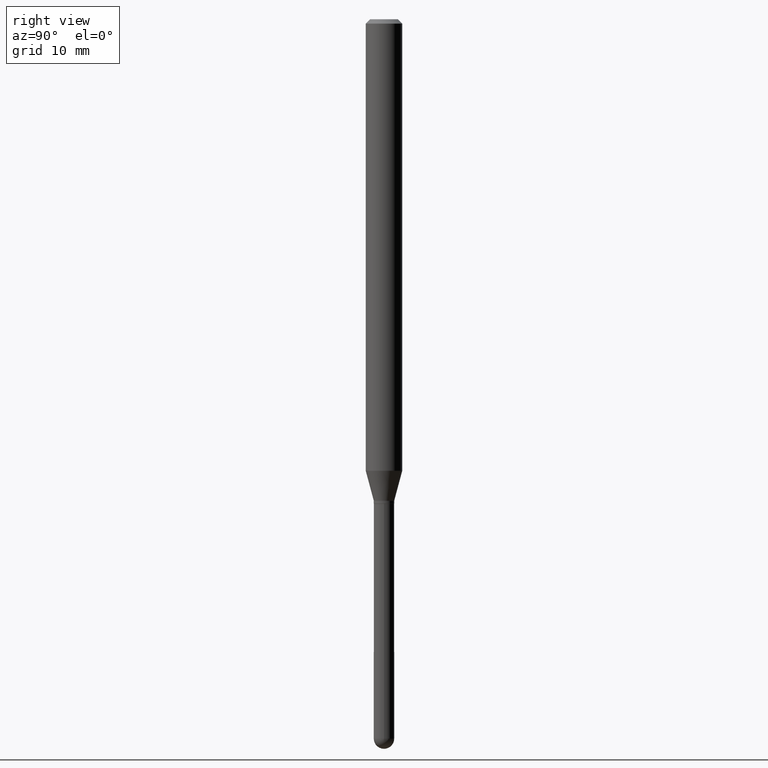
[diagram: clean part render]
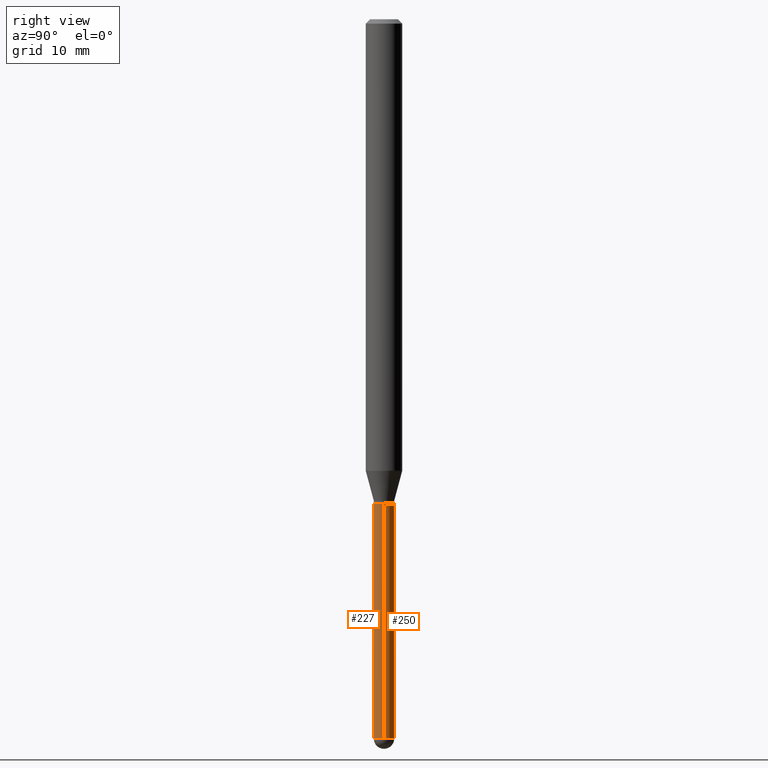
[diagram: same view with one multi-face feature highlighted, each face labeled with its STEP entity id]
A machine part, right view. The highlighted faces form ONE feature: a constant-radius fillet chain: 2 tangent blend faces with common blend radius 0.889 mm. The faces share edges in the B-rep.
Their STEP definitions:
[1] entity #250 (Cylinder):
#1 = VECTOR ( 'NONE', #497, 39.37007874015748143 ) ;
#9 = AXIS2_PLACEMENT_3D ( 'NONE', #379, #141, #174 ) ;
#11 = VERTEX_POINT ( 'NONE', #439 ) ;
#21 = LINE ( 'NONE', #366, #102 ) ;
#23 = DIRECTION ( 'NONE',  ( 1.000000000000000000, -6.982962677686276966E-15, 0.000000000000000000 ) ) ;
#35 = AXIS2_PLACEMENT_3D ( 'NONE', #312, #208, #356 ) ;
#39 = VERTEX_POINT ( 'NONE', #499 ) ;
#45 = VERTEX_POINT ( 'NONE', #488 ) ;
#95 = DIRECTION ( 'NONE',  ( -2.445468806185136597E-29, 3.491481338843145583E-15, 1.000000000000000000 ) ) ;
#97 = AXIS2_PLACEMENT_3D ( 'NONE', #464, #95, #293 ) ;
#98 = DIRECTION ( 'NONE',  ( -2.445468806185136877E-29, 3.491481338843145188E-15, 1.000000000000000000 ) ) ;
#102 = VECTOR ( 'NONE', #98, 39.37007874015748143 ) ;
#129 = DIRECTION ( 'NONE',  ( -2.445468806185136597E-29, 3.491481338843145583E-15, 1.000000000000000000 ) ) ;
#132 = CARTESIAN_POINT ( 'NONE',  ( 0.03500000000000000333, -2.444036937190193250E-16, 1.706661871528577808E-30 ) ) ;
#141 = DIRECTION ( 'NONE',  ( -2.445468806185136597E-29, 3.491481338843145583E-15, 1.000000000000000000 ) ) ;
#174 = DIRECTION ( 'NONE',  ( 1.000000000000000000, -6.982962677686248567E-15, 0.000000000000000000 ) ) ;
#196 = EDGE_CURVE ( 'NONE', #45, #507, #199, .T. ) ;
#199 = CIRCLE ( 'NONE', #35, 0.03500000000000000333 ) ;
#207 = CIRCLE ( 'NONE', #442, 0.03500000000000000333 ) ;
#208 = DIRECTION ( 'NONE',  ( -2.445468806185136597E-29, 3.491481338843145583E-15, 1.000000000000000000 ) ) ;
#226 = VERTEX_POINT ( 'NONE', #503 ) ;
#233 = EDGE_CURVE ( 'NONE', #39, #45, #337, .T. ) ;
#239 = ORIENTED_EDGE ( 'NONE', *, *, #196, .T. ) ;
#250 = ADVANCED_FACE ( 'NONE', ( #330 ), #506, .T. ) ;
#260 = EDGE_LOOP ( 'NONE', ( #239, #511, #305, #411, #421 ) ) ;
#293 = DIRECTION ( 'NONE',  ( 1.000000000000000000, -6.982962677686265922E-15, 4.876176775795936353E-29 ) ) ;
#305 = ORIENTED_EDGE ( 'NONE', *, *, #353, .F. ) ;
#312 = CARTESIAN_POINT ( 'NONE',  ( 6.028080607246362204E-29, -8.606501500248354960E-15, -2.464999999999999858 ) ) ;
#314 = CARTESIAN_POINT ( 'NONE',  ( -0.03500000000000000333, -6.952490303847953292E-15, -2.464999999999999858 ) ) ;
#323 = LINE ( 'NONE', #132, #1 ) ;
#330 = FACE_OUTER_BOUND ( 'NONE', #260, .T. ) ;
#337 = CIRCLE ( 'NONE', #9, 0.03500000000000000333 ) ;
#347 = EDGE_CURVE ( 'NONE', #507, #11, #21, .T. ) ;
#353 = EDGE_CURVE ( 'NONE', #226, #11, #207, .T. ) ;
#356 = DIRECTION ( 'NONE',  ( 1.000000000000000000, -6.982962677686248567E-15, 0.000000000000000000 ) ) ;
#362 = EDGE_CURVE ( 'NONE', #39, #226, #323, .T. ) ;
#366 = CARTESIAN_POINT ( 'NONE',  ( -0.03500000000000000333, 2.486899575160350887E-16, -1.721627281589217108E-30 ) ) ;
#379 = CARTESIAN_POINT ( 'NONE',  ( 6.028080607246362204E-29, -8.606501500248354960E-15, -2.464999999999999858 ) ) ;
#410 = CARTESIAN_POINT ( 'NONE',  ( 4.059478218267327378E-29, -5.795859022479622985E-15, -1.660000000000000364 ) ) ;
#411 = ORIENTED_EDGE ( 'NONE', *, *, #362, .F. ) ;
#421 = ORIENTED_EDGE ( 'NONE', *, *, #233, .T. ) ;
#439 = CARTESIAN_POINT ( 'NONE',  ( -0.03500000000000000333, -6.952490303847953292E-15, -1.660000000000000364 ) ) ;
#442 = AXIS2_PLACEMENT_3D ( 'NONE', #410, #129, #23 ) ;
#464 = CARTESIAN_POINT ( 'NONE',  ( 0.000000000000000000, 0.000000000000000000, 0.000000000000000000 ) ) ;
#488 = CARTESIAN_POINT ( 'NONE',  ( 2.444036937190786868E-16, 0.03499999999999126726, -2.464999999999999858 ) ) ;
#497 = DIRECTION ( 'NONE',  ( -2.445468806185136877E-29, 3.491481338843145188E-15, 1.000000000000000000 ) ) ;
#499 = CARTESIAN_POINT ( 'NONE',  ( 0.03500000000000000333, -7.445583955083008544E-15, -2.464999999999999858 ) ) ;
#503 = CARTESIAN_POINT ( 'NONE',  ( 0.03500000000000000333, -6.040262716198642951E-15, -1.660000000000000364 ) ) ;
#506 = CYLINDRICAL_SURFACE ( 'NONE', #97, 0.03500000000000000333 ) ;
#507 = VERTEX_POINT ( 'NONE', #314 ) ;
#511 = ORIENTED_EDGE ( 'NONE', *, *, #347, .T. ) ;
[2] entity #227 (Cylinder):
#1 = VECTOR ( 'NONE', #497, 39.37007874015748143 ) ;
#11 = VERTEX_POINT ( 'NONE', #439 ) ;
#21 = LINE ( 'NONE', #366, #102 ) ;
#31 = CARTESIAN_POINT ( 'NONE',  ( 4.059478218267327378E-29, -5.795859022479622985E-15, -1.660000000000000364 ) ) ;
#33 = DIRECTION ( 'NONE',  ( 1.000000000000000000, -6.982962677686276966E-15, 0.000000000000000000 ) ) ;
#36 = DIRECTION ( 'NONE',  ( -2.445468806185136597E-29, 3.491481338843145583E-15, 1.000000000000000000 ) ) ;
#39 = VERTEX_POINT ( 'NONE', #499 ) ;
#66 = DIRECTION ( 'NONE',  ( 1.000000000000000000, -6.982962677686265922E-15, 4.876176775795936353E-29 ) ) ;
#70 = CYLINDRICAL_SURFACE ( 'NONE', #262, 0.03500000000000000333 ) ;
#72 = CIRCLE ( 'NONE', #180, 0.03500000000000000333 ) ;
#98 = DIRECTION ( 'NONE',  ( -2.445468806185136877E-29, 3.491481338843145188E-15, 1.000000000000000000 ) ) ;
#101 = EDGE_CURVE ( 'NONE', #209, #39, #326, .T. ) ;
#102 = VECTOR ( 'NONE', #98, 39.37007874015748143 ) ;
#132 = CARTESIAN_POINT ( 'NONE',  ( 0.03500000000000000333, -2.444036937190193250E-16, 1.706661871528577808E-30 ) ) ;
#138 = EDGE_CURVE ( 'NONE', #507, #209, #72, .T. ) ;
#160 = DIRECTION ( 'NONE',  ( -2.445468806185136597E-29, 3.491481338843145583E-15, 1.000000000000000000 ) ) ;
#165 = CARTESIAN_POINT ( 'NONE',  ( -2.486899575159738534E-16, -0.03500000000000848266, -2.464999999999999858 ) ) ;
#177 = EDGE_CURVE ( 'NONE', #11, #226, #271, .T. ) ;
#180 = AXIS2_PLACEMENT_3D ( 'NONE', #299, #390, #191 ) ;
#191 = DIRECTION ( 'NONE',  ( 1.000000000000000000, -6.982962677686248567E-15, 0.000000000000000000 ) ) ;
#204 = CARTESIAN_POINT ( 'NONE',  ( 6.028080607246362204E-29, -8.606501500248354960E-15, -2.464999999999999858 ) ) ;
#209 = VERTEX_POINT ( 'NONE', #165 ) ;
#219 = FACE_OUTER_BOUND ( 'NONE', #258, .T. ) ;
#226 = VERTEX_POINT ( 'NONE', #503 ) ;
#227 = ADVANCED_FACE ( 'NONE', ( #219 ), #70, .T. ) ;
#228 = ORIENTED_EDGE ( 'NONE', *, *, #362, .T. ) ;
#246 = AXIS2_PLACEMENT_3D ( 'NONE', #31, #254, #33 ) ;
#254 = DIRECTION ( 'NONE',  ( -2.445468806185136597E-29, 3.491481338843145583E-15, 1.000000000000000000 ) ) ;
#258 = EDGE_LOOP ( 'NONE', ( #399, #475, #296, #228, #459 ) ) ;
#262 = AXIS2_PLACEMENT_3D ( 'NONE', #418, #36, #66 ) ;
#271 = CIRCLE ( 'NONE', #246, 0.03500000000000000333 ) ;
#296 = ORIENTED_EDGE ( 'NONE', *, *, #101, .T. ) ;
#299 = CARTESIAN_POINT ( 'NONE',  ( 6.028080607246362204E-29, -8.606501500248354960E-15, -2.464999999999999858 ) ) ;
#314 = CARTESIAN_POINT ( 'NONE',  ( -0.03500000000000000333, -6.952490303847953292E-15, -2.464999999999999858 ) ) ;
#321 = DIRECTION ( 'NONE',  ( 1.000000000000000000, -6.982962677686248567E-15, 0.000000000000000000 ) ) ;
#323 = LINE ( 'NONE', #132, #1 ) ;
#326 = CIRCLE ( 'NONE', #416, 0.03500000000000000333 ) ;
#347 = EDGE_CURVE ( 'NONE', #507, #11, #21, .T. ) ;
#362 = EDGE_CURVE ( 'NONE', #39, #226, #323, .T. ) ;
#366 = CARTESIAN_POINT ( 'NONE',  ( -0.03500000000000000333, 2.486899575160350887E-16, -1.721627281589217108E-30 ) ) ;
#390 = DIRECTION ( 'NONE',  ( -2.445468806185136597E-29, 3.491481338843145583E-15, 1.000000000000000000 ) ) ;
#399 = ORIENTED_EDGE ( 'NONE', *, *, #347, .F. ) ;
#416 = AXIS2_PLACEMENT_3D ( 'NONE', #204, #160, #321 ) ;
#418 = CARTESIAN_POINT ( 'NONE',  ( 0.000000000000000000, 0.000000000000000000, 0.000000000000000000 ) ) ;
#439 = CARTESIAN_POINT ( 'NONE',  ( -0.03500000000000000333, -6.952490303847953292E-15, -1.660000000000000364 ) ) ;
#459 = ORIENTED_EDGE ( 'NONE', *, *, #177, .F. ) ;
#475 = ORIENTED_EDGE ( 'NONE', *, *, #138, .T. ) ;
#497 = DIRECTION ( 'NONE',  ( -2.445468806185136877E-29, 3.491481338843145188E-15, 1.000000000000000000 ) ) ;
#499 = CARTESIAN_POINT ( 'NONE',  ( 0.03500000000000000333, -7.445583955083008544E-15, -2.464999999999999858 ) ) ;
#503 = CARTESIAN_POINT ( 'NONE',  ( 0.03500000000000000333, -6.040262716198642951E-15, -1.660000000000000364 ) ) ;
#507 = VERTEX_POINT ( 'NONE', #314 ) ;